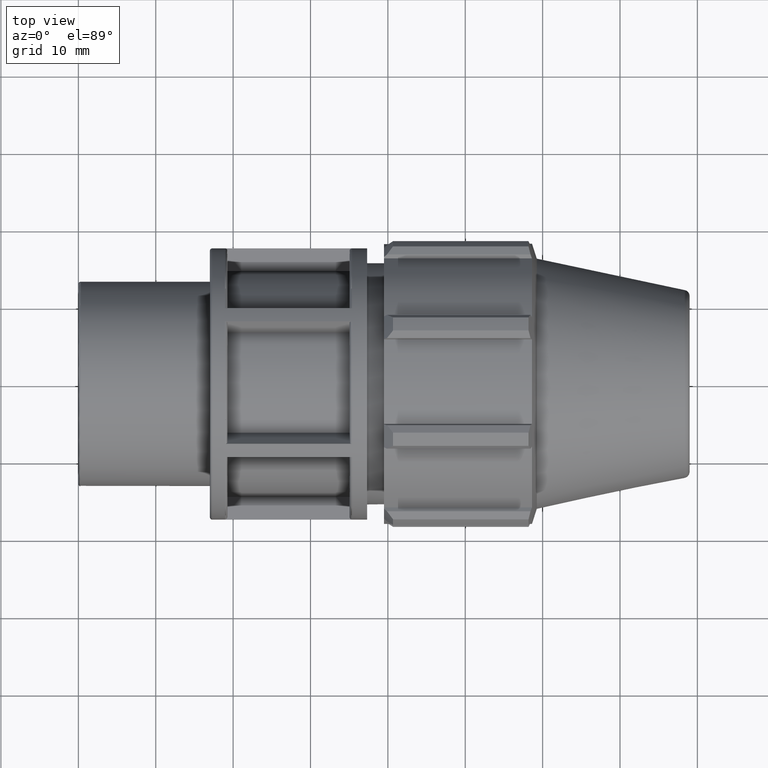
[diagram: clean part render]
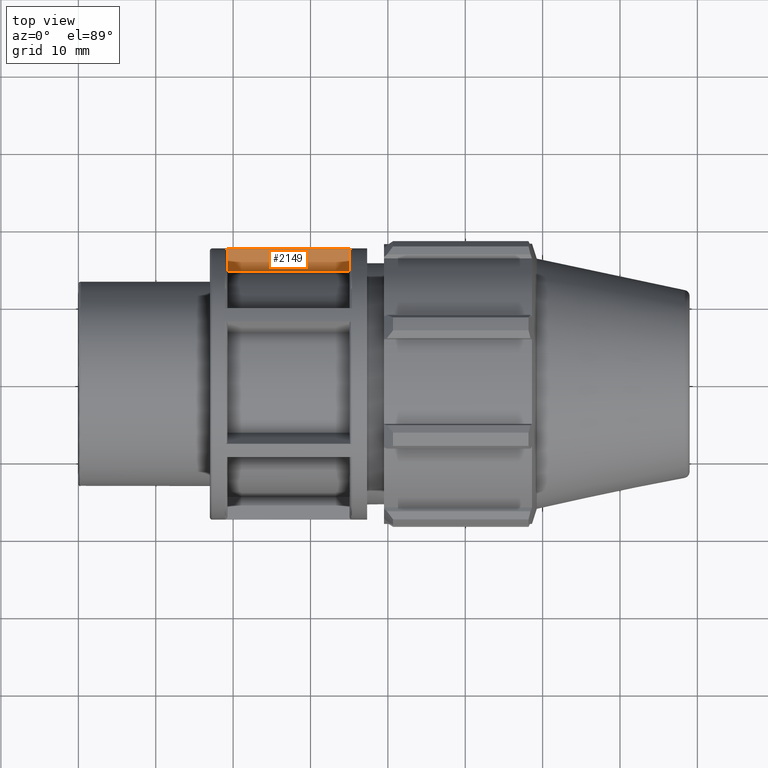
[diagram: same view with one face highlighted and labeled with its STEP entity id]
A machine part, top view. The second image highlights one B-rep face of the part: STEP entity #2149.
In plain terms, the highlighted planar face has unit normal (0, -0, 1).
Its self-contained STEP definition (entity closure, byte-faithful):
#69=LINE('',#3038,#213);
#80=LINE('',#3338,#224);
#102=LINE('',#3389,#246);
#103=LINE('',#3399,#247);
#213=VECTOR('',#2442,16.44);
#224=VECTOR('',#2523,2.61090302528976);
#246=VECTOR('',#2577,2.61090302528976);
#247=VECTOR('',#2596,15.8);
#356=B_SPLINE_CURVE_WITH_KNOTS('',3,(#3140,#3141,#3142,#3143,#3144,#3145,
#3146,#3147,#3148,#3149),.UNSPECIFIED.,.F.,.F.,(4,2,2,2,4),(0.,0.0118406177038031,
0.0236924423676916,0.0355580996589379,0.0474356561106789),.UNSPECIFIED.);
#368=B_SPLINE_CURVE_WITH_KNOTS('',3,(#3314,#3315,#3316,#3317,#3318,#3319,
#3320,#3321,#3322,#3323),.UNSPECIFIED.,.F.,.F.,(4,2,2,2,4),(0.142309852922416,
0.154187409374157,0.166053066665404,0.177904891329292,0.189745509033095),
 .UNSPECIFIED.);
#456=PLANE('',#2360);
#579=FACE_OUTER_BOUND('',#717,.T.);
#717=EDGE_LOOP('',(#1834,#1835,#1836,#1837,#1838,#1839));
#867=VERTEX_POINT('',#3035);
#868=VERTEX_POINT('',#3037);
#878=VERTEX_POINT('',#3139);
#900=VERTEX_POINT('',#3313);
#902=VERTEX_POINT('',#3337);
#915=VERTEX_POINT('',#3387);
#1070=EDGE_CURVE('',#868,#867,#69,.T.);
#1085=EDGE_CURVE('',#878,#867,#356,.F.);
#1118=EDGE_CURVE('',#868,#900,#368,.F.);
#1121=EDGE_CURVE('',#900,#902,#80,.T.);
#1146=EDGE_CURVE('',#915,#878,#102,.T.);
#1151=EDGE_CURVE('',#902,#915,#103,.T.);
#1834=ORIENTED_EDGE('',*,*,#1146,.F.);
#1835=ORIENTED_EDGE('',*,*,#1151,.F.);
#1836=ORIENTED_EDGE('',*,*,#1121,.F.);
#1837=ORIENTED_EDGE('',*,*,#1118,.F.);
#1838=ORIENTED_EDGE('',*,*,#1070,.T.);
#1839=ORIENTED_EDGE('',*,*,#1085,.F.);
#2149=ADVANCED_FACE('',(#579),#456,.T.);
#2360=AXIS2_PLACEMENT_3D('',#3818,#2901,#2902);
#2442=DIRECTION('',(-1.,0.,0.));
#2523=DIRECTION('',(0.,-1.,-1.36456220092627E-16));
#2577=DIRECTION('',(0.,1.,1.36456220092627E-16));
#2596=DIRECTION('',(-1.,0.,0.));
#2901=DIRECTION('center_axis',(0.,-1.36456220092627E-16,1.));
#2902=DIRECTION('ref_axis',(0.,1.,1.33226762955019E-16));
#3035=CARTESIAN_POINT('',(18.9371428571429,17.517544732322,1.06683014163413));
#3037=CARTESIAN_POINT('',(35.3771428571429,17.517544732322,1.06683014163413));
#3038=CARTESIAN_POINT('',(18.1285714285714,17.517544732322,1.06683014163413));
#3139=CARTESIAN_POINT('',(19.2571428571429,17.1969408165784,1.06683014163413));
#3140=CARTESIAN_POINT('Ctrl Pts',(18.9371428571429,17.517544732322,1.06683014163413));
#3141=CARTESIAN_POINT('Ctrl Pts',(18.9766115828222,17.517544732322,1.06683014163413));
#3142=CARTESIAN_POINT('Ctrl Pts',(19.0230615879543,17.5082926695818,1.06683014163413));
#3143=CARTESIAN_POINT('Ctrl Pts',(19.0960132741438,17.4780425164626,1.06683014163413));
#3144=CARTESIAN_POINT('Ctrl Pts',(19.1354140197024,17.4516790338541,1.06683014163413));
#3145=CARTESIAN_POINT('Ctrl Pts',(19.1912850515715,17.3957448014317,1.06683014163413));
#3146=CARTESIAN_POINT('Ctrl Pts',(19.2176280936894,17.3562638528714,1.06683014163413));
#3147=CARTESIAN_POINT('Ctrl Pts',(19.2478868164714,17.2831325348006,1.06683014163413));
#3148=CARTESIAN_POINT('Ctrl Pts',(19.2571428571429,17.2365326714176,1.06683014163413));
#3149=CARTESIAN_POINT('Ctrl Pts',(19.2571428571429,17.1969408165784,1.06683014163413));
#3313=CARTESIAN_POINT('',(35.0571428571429,17.1969408165784,1.06683014163413));
#3314=CARTESIAN_POINT('Ctrl Pts',(35.0571428571429,17.1969408165784,1.06683014163413));
#3315=CARTESIAN_POINT('Ctrl Pts',(35.0571428571429,17.2365326714176,1.06683014163413));
#3316=CARTESIAN_POINT('Ctrl Pts',(35.0663988978143,17.2831325348006,1.06683014163413));
#3317=CARTESIAN_POINT('Ctrl Pts',(35.0966576205963,17.3562638528714,1.06683014163413));
#3318=CARTESIAN_POINT('Ctrl Pts',(35.1230006627142,17.3957448014317,1.06683014163413));
#3319=CARTESIAN_POINT('Ctrl Pts',(35.1788716945833,17.4516790338541,1.06683014163413));
#3320=CARTESIAN_POINT('Ctrl Pts',(35.2182724401419,17.4780425164626,1.06683014163413));
#3321=CARTESIAN_POINT('Ctrl Pts',(35.2912241263314,17.5082926695818,1.06683014163413));
#3322=CARTESIAN_POINT('Ctrl Pts',(35.3376741314635,17.517544732322,1.06683014163413));
#3323=CARTESIAN_POINT('Ctrl Pts',(35.3771428571429,17.517544732322,1.06683014163413));
#3337=CARTESIAN_POINT('',(35.0571428571429,14.5860377912887,1.06683014163413));
#3338=CARTESIAN_POINT('',(35.0571428571429,13.9742235750264,1.06683014163413));
#3387=CARTESIAN_POINT('',(19.2571428571428,14.5860377912887,1.06683014163413));
#3389=CARTESIAN_POINT('',(19.2571428571429,12.5117235750264,1.06683014163413));
#3399=CARTESIAN_POINT('',(27.1571428571429,14.5860377912887,1.06683014163413));
#3818=CARTESIAN_POINT('Origin',(37.3142857142857,10.3984471500528,1.06683014163413));